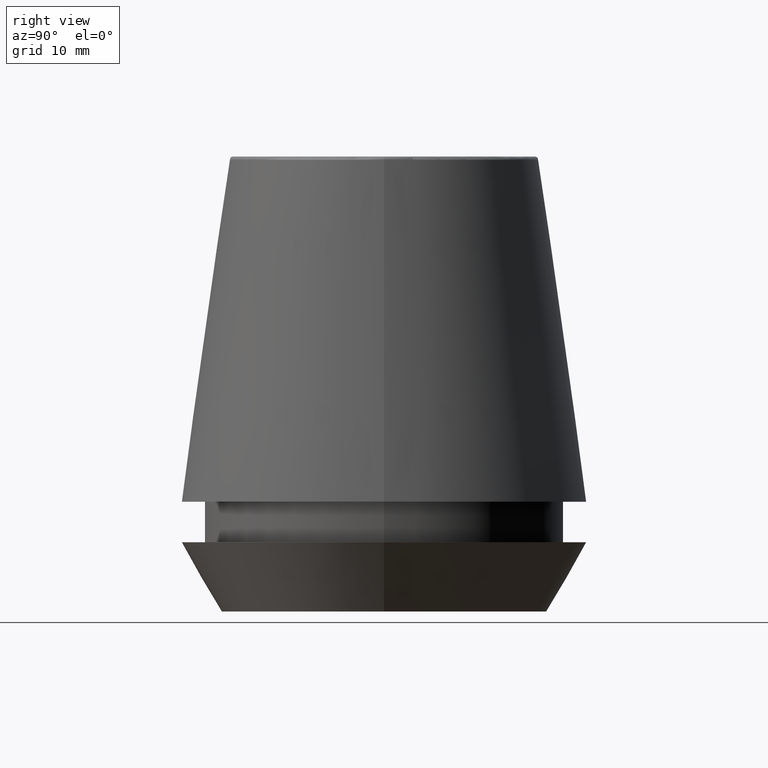
[diagram: clean part render]
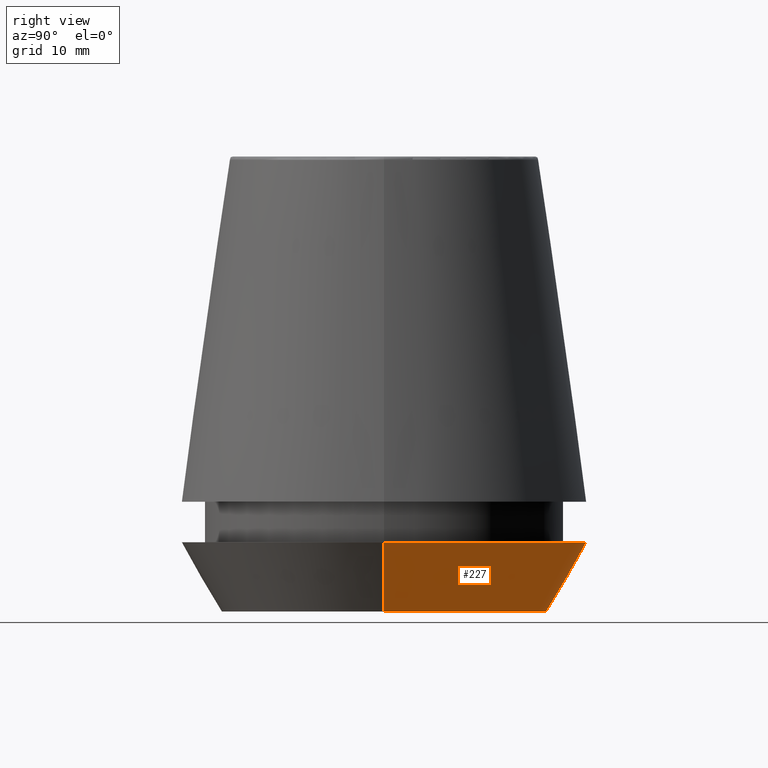
[diagram: same view with one face highlighted and labeled with its STEP entity id]
A machine part, right view. The second image highlights one B-rep face of the part: STEP entity #227.
In plain terms, the highlighted conical surface has half-angle 30 deg.
Its self-contained STEP definition (entity closure, byte-faithful):
#3 = VERTEX_POINT ( 'NONE', #18 ) ;
#16 = ORIENTED_EDGE ( 'NONE', *, *, #297, .F. ) ;
#18 = CARTESIAN_POINT ( 'NONE',  ( -16.45854811567268100, 2.263058382549599700E-015, 0.0000000000000000000 ) ) ;
#21 = DIRECTION ( 'NONE',  ( 1.000000000000000000, 0.0000000000000000000, 0.0000000000000000000 ) ) ;
#25 = CARTESIAN_POINT ( 'NONE',  ( 0.0000000000000000000, 0.0000000000000000000, 0.0000000000000000000 ) ) ;
#27 = ORIENTED_EDGE ( 'NONE', *, *, #239, .F. ) ;
#30 = VERTEX_POINT ( 'NONE', #319 ) ;
#46 = EDGE_CURVE ( 'NONE', #3, #70, #309, .T. ) ;
#58 = CARTESIAN_POINT ( 'NONE',  ( 0.0000000000000000000, 0.0000000000000000000, 7.000000000000006200 ) ) ;
#65 = EDGE_CURVE ( 'NONE', #30, #3, #308, .T. ) ;
#70 = VERTEX_POINT ( 'NONE', #127 ) ;
#83 = DIRECTION ( 'NONE',  ( 1.000000000000000000, 0.0000000000000000000, 0.0000000000000000000 ) ) ;
#94 = DIRECTION ( 'NONE',  ( -0.4999999999999941700, 6.123233995736694500E-017, 0.8660254037844420400 ) ) ;
#106 = DIRECTION ( 'NONE',  ( 0.4999999999999941700, 0.0000000000000000000, 0.8660254037844420400 ) ) ;
#120 = EDGE_LOOP ( 'NONE', ( #271, #321, #16, #27 ) ) ;
#127 = CARTESIAN_POINT ( 'NONE',  ( -20.50000000000000000, 2.510525938252074100E-015, 7.000000000000006200 ) ) ;
#175 = VERTEX_POINT ( 'NONE', #252 ) ;
#186 = CONICAL_SURFACE ( 'NONE', #209, 16.45854811567268100, 0.5235987755982921500 ) ;
#209 = AXIS2_PLACEMENT_3D ( 'NONE', #25, #358, #313 ) ;
#216 = CARTESIAN_POINT ( 'NONE',  ( -16.45854811567268100, 2.015590826847124800E-015, 0.0000000000000000000 ) ) ;
#219 = AXIS2_PLACEMENT_3D ( 'NONE', #58, #259, #83 ) ;
#227 = ADVANCED_FACE ( 'NONE', ( #285 ), #186, .T. ) ;
#237 = CIRCLE ( 'NONE', #219, 20.50000000000000000 ) ;
#239 = EDGE_CURVE ( 'NONE', #30, #175, #250, .T. ) ;
#250 = LINE ( 'NONE', #279, #262 ) ;
#252 = CARTESIAN_POINT ( 'NONE',  ( 20.50000000000000000, 0.0000000000000000000, 7.000000000000006200 ) ) ;
#259 = DIRECTION ( 'NONE',  ( -0.0000000000000000000, -0.0000000000000000000, 1.000000000000000000 ) ) ;
#262 = VECTOR ( 'NONE', #106, 1000.000000000000000 ) ;
#271 = ORIENTED_EDGE ( 'NONE', *, *, #65, .T. ) ;
#279 = CARTESIAN_POINT ( 'NONE',  ( 16.45854811567268100, 0.0000000000000000000, 0.0000000000000000000 ) ) ;
#285 = FACE_OUTER_BOUND ( 'NONE', #120, .T. ) ;
#297 = EDGE_CURVE ( 'NONE', #175, #70, #237, .T. ) ;
#308 = CIRCLE ( 'NONE', #356, 16.45854811567268100 ) ;
#309 = LINE ( 'NONE', #216, #341 ) ;
#313 = DIRECTION ( 'NONE',  ( 1.000000000000000000, 0.0000000000000000000, 0.0000000000000000000 ) ) ;
#317 = CARTESIAN_POINT ( 'NONE',  ( 0.0000000000000000000, 0.0000000000000000000, 0.0000000000000000000 ) ) ;
#319 = CARTESIAN_POINT ( 'NONE',  ( 16.45854811567268100, 0.0000000000000000000, 0.0000000000000000000 ) ) ;
#321 = ORIENTED_EDGE ( 'NONE', *, *, #46, .T. ) ;
#339 = DIRECTION ( 'NONE',  ( -0.0000000000000000000, -0.0000000000000000000, 1.000000000000000000 ) ) ;
#341 = VECTOR ( 'NONE', #94, 1000.000000000000000 ) ;
#356 = AXIS2_PLACEMENT_3D ( 'NONE', #317, #339, #21 ) ;
#358 = DIRECTION ( 'NONE',  ( -0.0000000000000000000, -0.0000000000000000000, 1.000000000000000000 ) ) ;